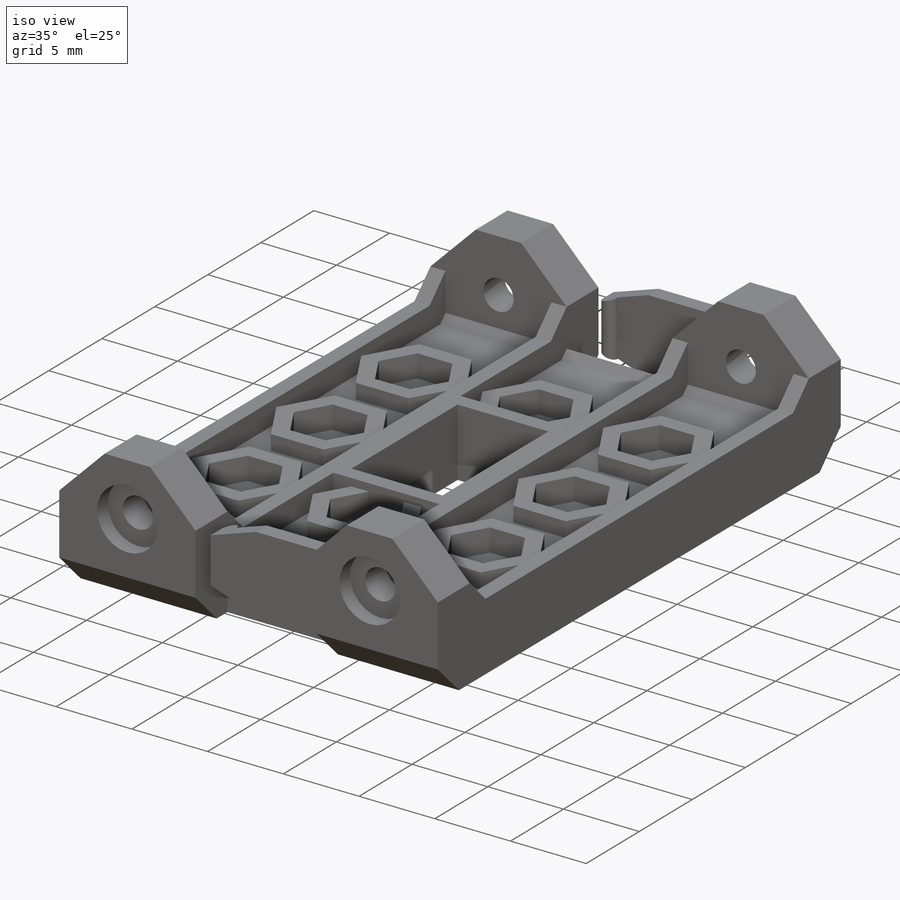
[diagram: iso view]
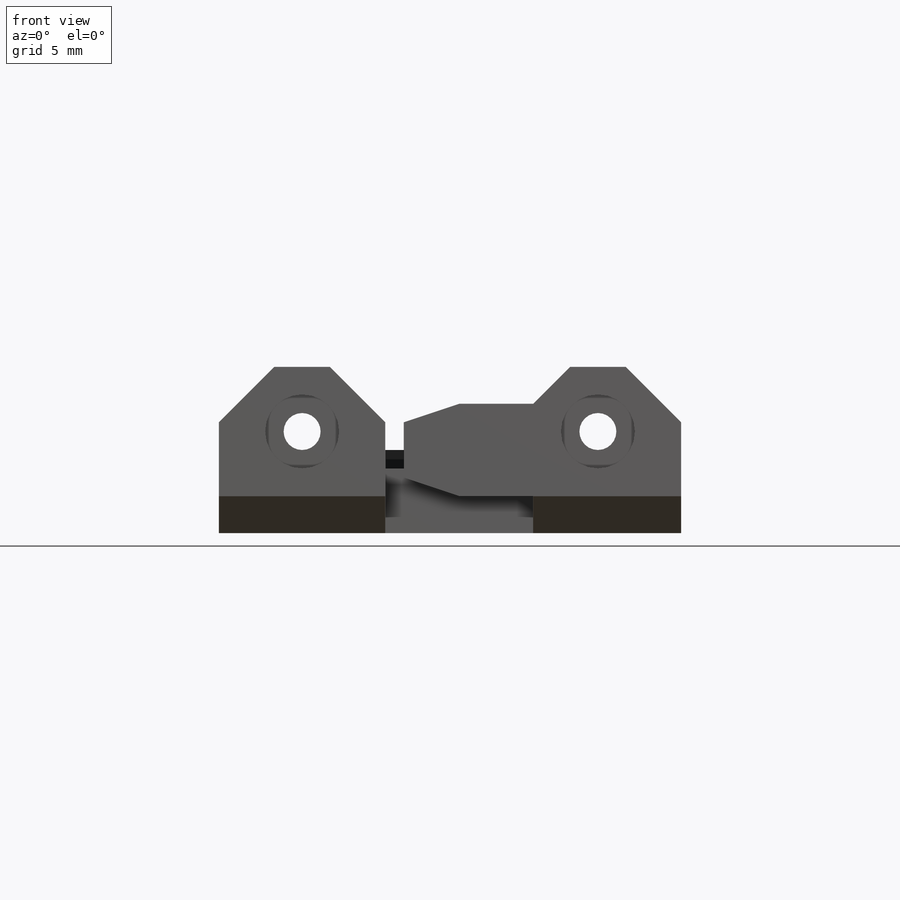
[diagram: front view]
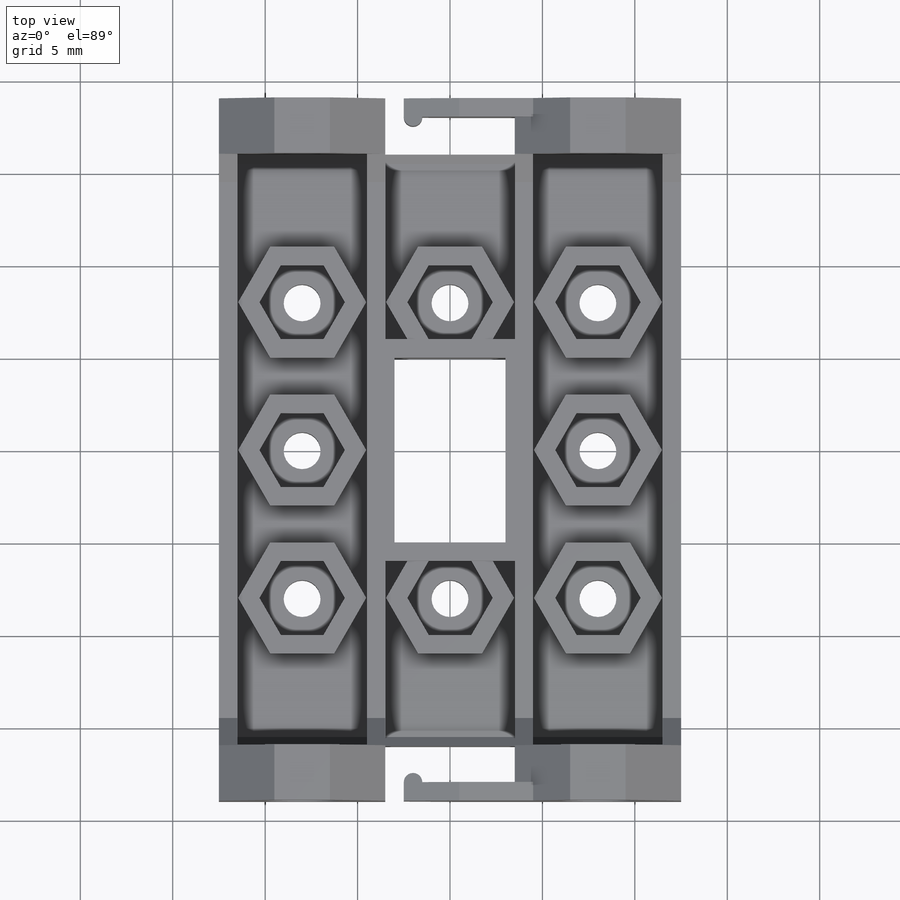
[diagram: top view]
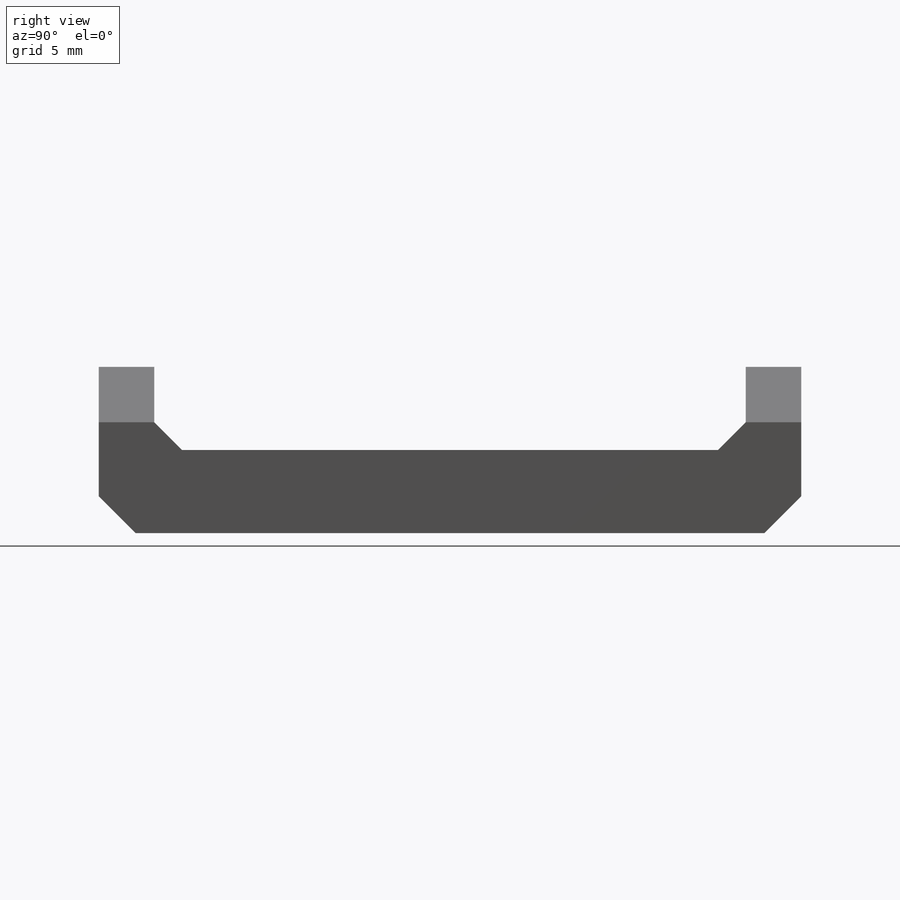
[diagram: right view]
SOLIDWORKS PART (.sldprt)
format: sldprt  version: not decoded by parser v0  size: 1,277,440 bytes
history: native  units: mm
features: sketch x31, extrude x16, cut_extrude x15, material x1, mirror x1, fillet x1 (+12 scaffold rows collapsed)
feature tree (77):
  scaffold x12  (default folders/planes/origin — collapsed)
  material  "Material <not specified>"
  sketch  "Sketch1"  dims[c1.D8=5.0mm c1.D9=2.0mm c1.D10=2.0mm c1.D11=~2.095994mm c1.D12=~1.481024mm c1.D16=~2.077299mm c1.D17=~1.310518mm c1.D20=~1.837165mm c1.D24=3.0mm c1.D25=3.0mm c1.D1=12.5mm c1.D2=12.5mm c1.D3=19.0mm c1.D4=19.0mm c1.D5=10.75mm c1.D6=10.75mm c1.D7=11.5mm c2.D11=14.5mm c2.D12=8.0mm c2.D13=8.0mm c2.D14=8.0mm c2.D15=8.0mm c2.D16=135.0deg c3.D16=8.0mm c3.D17=8.0mm c3.D18=8.0mm c3.D19=8.0mm c3.D20=8.0mm c3.D21=8.0mm c3.D22=8.0mm c3.D23=8.0mm c3.D24=7.0mm c3.D25=7.0mm c4.D24=3.0mm c4.D25=3.0mm c4.D26=5.0mm c4.D27=5.0mm]
  extrude  "Extrude1"  Depth=3mm
  sketch  "Sketch2"  dims[c1.D1=~3.361331mm c2.D1=22.5deg c3.D1=3.0mm c4.D1=15.0deg c5.D1=1.0mm c6.D1=105.0deg c7.D1=1.0mm c7.D2=~2.23071mm c8.D2=~179.57848deg c8.D1=135.0deg]
  extrude  "Extrude2"  Depth=4mm
  sketch  "Sketch5"  dims[c1.D1=~3.89567mm c1.D2=2.0mm c2.D1=60.0deg c3.D1=4.0mm c4.D1=120.0deg c5.D1=4.0mm c5.D2=4.0mm c5.D3=135.0deg]
  extrude  "Extrude3"  Depth=4mm
  sketch  "Sketch7"  dims[D1=7.0mm D2=1.0mm D3=7.0mm D4=1.0mm D5=7.0mm]
  extrude  "Extrude4"  Depth=4.5mm
  sketch  "Sketch8"  dims[c1.D1=3.5mm c1.D2=3.5mm c1.D3=5.0mm c1.D4=5.0mm c1.D5=0.5mm c2.D1=1.5mm c2.D2=21.5mm c3.D2=~179.893672deg c4.D2=~1.490738mm c4.D1=1.5mm c5.D2=1.5mm c5.D5=1.5mm]
  extrude  "Extrude5"  Depth=6mm
  sketch  "Sketch9"  dims[D1=3.0mm]
  extrude  "Extrude10"  Depth=3.5mm
  sketch  "Sketch10"  dims[c1.D1=3.5mm c2.D1=60.0deg c3.D1=1.25mm]
  extrude  "Extrude11"  Depth=6mm
  sketch  "Sketch12"
  extrude  "Extrude12"  Depth=4mm
  sketch  "Sketch13"
  cut_extrude  "Cut-Extrude1"  Depth=4mm
  sketch  "Sketch14"  dims[D1=2.0mm]
  cut_extrude  "Cut-Extrude2"  Depth=4mm
  sketch  "Sketch16"  dims[c1.D2=~0.913027mm c1.D1=4.5mm c2.D2=16.0mm c2.D1=4.5mm c2.D3=9.0mm c2.D4=~9.61992mm c3.D3=2.0mm c3.D4=5.0mm c3.D5=3.0mm]
  extrude  "Extrude13"  Depth=3mm
  sketch  "Sketch17"  dims[D1=2.0mm]
  cut_extrude  "Cut-Extrude4"  Depth=3mm
  sketch  "Sketch18"  dims[D1=0.5mm]
  cut_extrude  "Cut-Extrude5"  [1 undecoded]
  sketch  "Sketch19"
  cut_extrude  "Cut-Extrude6"  Depth=2mm
  sketch  "Sketch20"  dims[D1=3.0mm D2=0.5mm]
  extrude  "Extrude14"  Depth=25mm
  sketch  "Sketch21"
  extrude  "Extrude15"  Depth=1mm
  sketch  "Sketch22"
  extrude  "Extrude17"  Depth=1mm
  sketch  "Sketch23"
  extrude  "Extrude18"  Depth=1mm
  sketch  "Sketch24"
  extrude  "Extrude19"  Depth=1mm
  sketch  "Sketch25"  dims[D1=2.0mm]
  cut_extrude  "Cut-Extrude7"  [1 undecoded]
  sketch  "Sketch26"  dims[D1=~2.149703mm]
  cut_extrude  "Cut-Extrude8"  Depth=1mm
  mirror  "Mirror1"
  sketch  "Sketch27"  dims[D1=5.0mm]
  cut_extrude  "Cut-Extrude9"  Depth=1.5mm
  sketch  "Sketch28"  dims[D1=3.0mm]
  cut_extrude  "Cut-Extrude10"  Depth=1mm
  sketch  "Sketch29"  dims[c1.D2=~1.371271mm c1.D3=~1.238257mm c1.D1=2.0mm c2.D2=2.0mm c2.D3=5.0mm]
  cut_extrude  "Cut-Extrude11"  Depth=1.5mm
  fillet  "Fillet4"  Radius=0.25mm
  sketch  "Sketch30"
  cut_extrude  "Cut-Extrude12"  Depth=1.5mm
  sketch  "Sketch31"
  cut_extrude  "Cut-Extrude13"  [1 undecoded]
  sketch  "Sketch32"
  cut_extrude  "Cut-Extrude14"  Depth=14.5mm
  sketch  "Sketch33"
  extrude  "Extrude20"  Depth=15mm
  sketch  "Sketch34"
  extrude  "Extrude21"  Depth=1mm
  sketch  "Sketch35"
  cut_extrude  "Cut-Extrude15"  Depth=0.5mm
  sketch  "Sketch36"  dims[c1.D1=2.0mm c1.D2=2.0mm c1.D3=2.0mm c1.D5=2.0mm c2.D1=8.0mm c2.D2=8.0mm c2.D3=8.0mm c2.D4=8.0mm c2.D5=8.0mm]
  cut_extrude  "Cut-Extrude16"  Depth=10.5mm
decode coverage: 47 of 64 modeling features carry decoded parameters
note: ~ marks probable driven/reference dimensions
note: 3 parameter values undecoded
summary: no parameter record found for 3 features
note: suppression state not decoded; provenance and decode notes live in map.json
